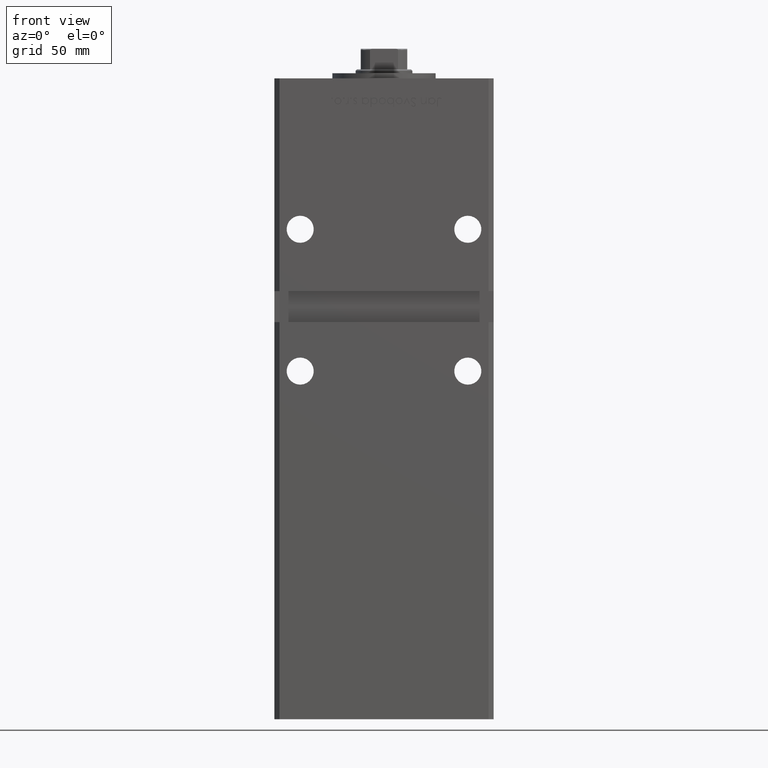
[diagram: clean part render]
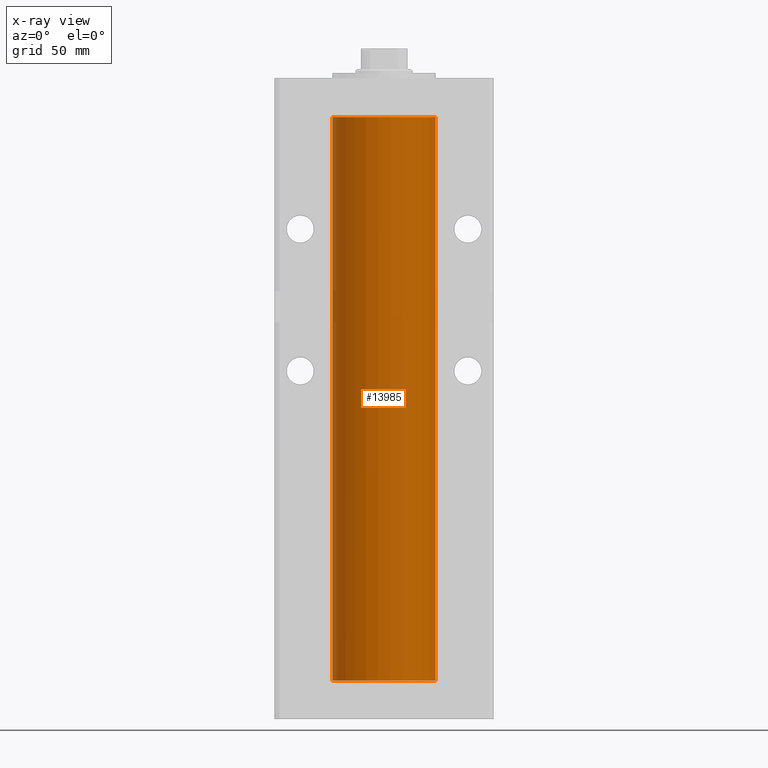
[diagram: x-ray — body ghosted, one internal face saturated and labeled with its STEP entity id]
A machine part, front view, then the same camera in x-ray: the body is ghosted and one INTERNAL B-rep face — a face not visible from any outside direction — is saturated and labeled: STEP entity #13985.
In plain terms, the highlighted cylindrical surface (partial cylindrical patch) has radius 20 mm, axis along (-0, -0, -1).
Its self-contained STEP definition (entity closure, byte-faithful):
#1049 = CARTESIAN_POINT ( 'NONE',  ( 0.000000000000000000, 0.000000000000000000, 218.5000000000000000 ) ) ;
#1936 = DIRECTION ( 'NONE',  ( -0.000000000000000000, -0.000000000000000000, -1.000000000000000000 ) ) ;
#5089 = DIRECTION ( 'NONE',  ( 1.000000000000000000, 0.000000000000000000, 0.000000000000000000 ) ) ;
#5645 = ORIENTED_EDGE ( 'NONE', *, *, #40170, .F. ) ;
#8610 = DIRECTION ( 'NONE',  ( -0.000000000000000000, 0.000000000000000000, 1.000000000000000000 ) ) ;
#9113 = VECTOR ( 'NONE', #1936, 1000.000000000000000 ) ;
#10505 = CARTESIAN_POINT ( 'NONE',  ( 20.00000000000000000, 2.449293598294706513E-15, 0.000000000000000000 ) ) ;
#10541 = LINE ( 'NONE', #26951, #9113 ) ;
#11388 = DIRECTION ( 'NONE',  ( -1.000000000000000000, 0.000000000000000000, 0.000000000000000000 ) ) ;
#11906 = ORIENTED_EDGE ( 'NONE', *, *, #21632, .F. ) ;
#11923 = VERTEX_POINT ( 'NONE', #15971 ) ;
#12591 = AXIS2_PLACEMENT_3D ( 'NONE', #48255, #15696, #11388 ) ;
#13267 = VERTEX_POINT ( 'NONE', #24174 ) ;
#13985 = ADVANCED_FACE ( 'NONE', ( #49049 ), #28333, .F. ) ;
#14056 = CARTESIAN_POINT ( 'NONE',  ( 0.000000000000000000, 0.000000000000000000, 0.000000000000000000 ) ) ;
#14800 = ORIENTED_EDGE ( 'NONE', *, *, #52514, .T. ) ;
#15696 = DIRECTION ( 'NONE',  ( -0.000000000000000000, -0.000000000000000000, -1.000000000000000000 ) ) ;
#15971 = CARTESIAN_POINT ( 'NONE',  ( 20.00000000000000000, 2.449293598294706513E-15, 218.5000000000000000 ) ) ;
#16716 = VERTEX_POINT ( 'NONE', #17914 ) ;
#17261 = CIRCLE ( 'NONE', #33613, 20.00000000000000000 ) ;
#17914 = CARTESIAN_POINT ( 'NONE',  ( -20.00000000000000000, 0.000000000000000000, 218.5000000000000000 ) ) ;
#18269 = AXIS2_PLACEMENT_3D ( 'NONE', #1049, #8610, #5089 ) ;
#20688 = EDGE_LOOP ( 'NONE', ( #29608, #14800, #11906, #5645 ) ) ;
#21632 = EDGE_CURVE ( 'NONE', #13267, #34166, #17261, .T. ) ;
#22132 = DIRECTION ( 'NONE',  ( 1.000000000000000000, 0.000000000000000000, 0.000000000000000000 ) ) ;
#22753 = LINE ( 'NONE', #34333, #52108 ) ;
#24174 = CARTESIAN_POINT ( 'NONE',  ( -20.00000000000000000, 0.000000000000000000, 0.000000000000000000 ) ) ;
#24420 = EDGE_CURVE ( 'NONE', #16716, #11923, #40575, .T. ) ;
#26951 = CARTESIAN_POINT ( 'NONE',  ( 20.00000000000000000, 2.449293598294706513E-15, 218.5000000000000000 ) ) ;
#28333 = CYLINDRICAL_SURFACE ( 'NONE', #12591, 20.00000000000000000 ) ;
#29608 = ORIENTED_EDGE ( 'NONE', *, *, #24420, .T. ) ;
#33613 = AXIS2_PLACEMENT_3D ( 'NONE', #14056, #43107, #22132 ) ;
#34166 = VERTEX_POINT ( 'NONE', #10505 ) ;
#34333 = CARTESIAN_POINT ( 'NONE',  ( -20.00000000000000000, 0.000000000000000000, 218.5000000000000000 ) ) ;
#40170 = EDGE_CURVE ( 'NONE', #16716, #13267, #22753, .T. ) ;
#40575 = CIRCLE ( 'NONE', #18269, 20.00000000000000000 ) ;
#43107 = DIRECTION ( 'NONE',  ( -0.000000000000000000, 0.000000000000000000, 1.000000000000000000 ) ) ;
#48255 = CARTESIAN_POINT ( 'NONE',  ( 0.000000000000000000, 0.000000000000000000, 218.5000000000000000 ) ) ;
#49049 = FACE_OUTER_BOUND ( 'NONE', #20688, .T. ) ;
#51806 = DIRECTION ( 'NONE',  ( -0.000000000000000000, -0.000000000000000000, -1.000000000000000000 ) ) ;
#52108 = VECTOR ( 'NONE', #51806, 1000.000000000000000 ) ;
#52514 = EDGE_CURVE ( 'NONE', #11923, #34166, #10541, .T. ) ;